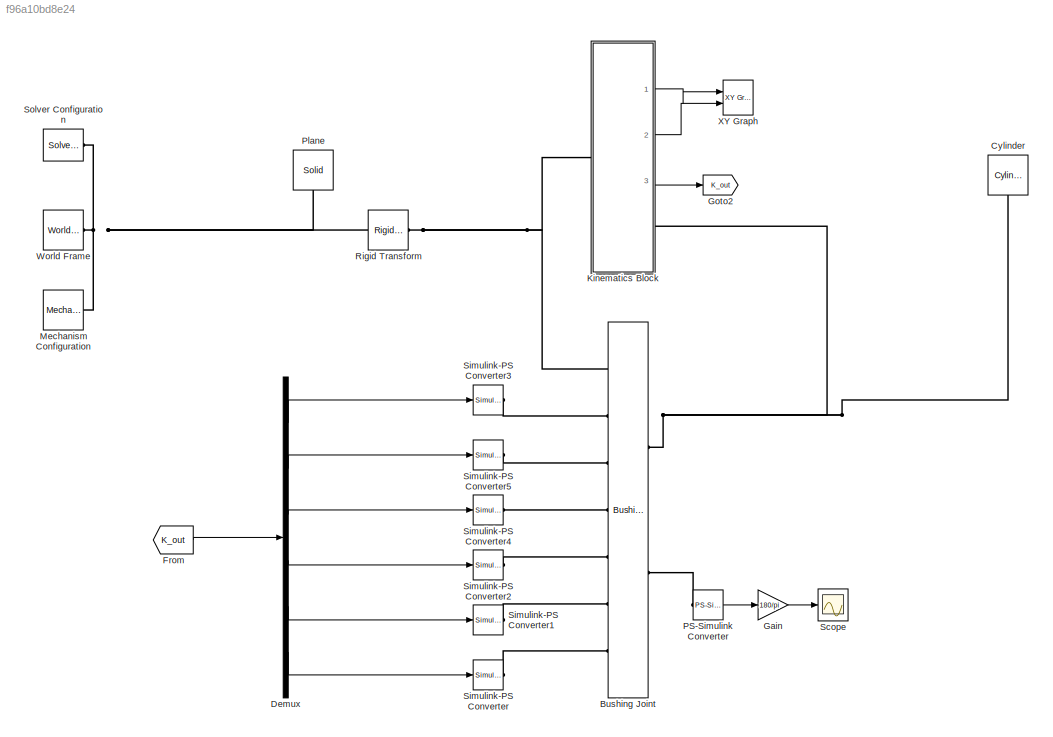
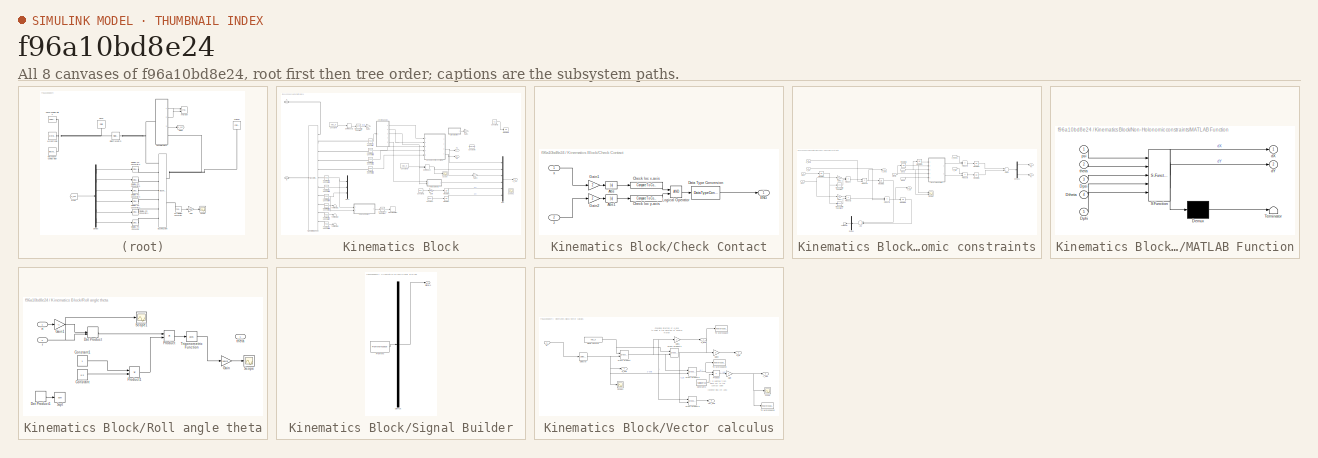
[diagram: thumbnail index - all 8 canvases of the model, root first then tree order]
MODEL slx_f96a10bd8e24
KIND model
CONFIG AbsTol = auto
CONFIG EnableMultiTasking = off
CONFIG FixedStep = auto
CONFIG MaxStep = auto
CONFIG MinStep = auto
CONFIG RelTol = 1e-3
CONFIG SampleTimeConstraint = Unconstrained
CONFIG Solver = VariableStepAuto
CONFIG SolverName = VariableStepAuto
CONFIG StartTime = 0.0
CONFIG StopTime = 10
BLOCK [Reference] Bushing Joint  REF=sm_lib/Joints/Bushing Joint
  Ports = [0, 0, 0, 0, 0, 7, 2]
  SourceBlock = sm_lib/Joints/Bushing Joint
  SourceProductBaseCode = MS
  SourceProductName = Simscape Multibody
  SourceType = Bushing Joint
BLOCK [Reference] Cylinder  REF=Parts_Lib/Cylinder
  Ports = [0, 0, 0, 0, 0, 1]
  SourceBlock = Parts_Lib/Cylinder
  SourceType = Solid Cylinder with Markings
  Tag = CustomStyle
BLOCK [Demux] Demux
  DisplayOption = bar
  Outputs = 6
  Ports = [1, 6]
BLOCK [From] From
  GotoTag = K_out
  TagVisibility = global
BLOCK [Gain] Gain
  Gain = 180/pi
  OutDataTypeStr = Inherit: Inherit via internal rule
  ParamDataTypeStr = Inherit: Inherit via internal rule
  SaturateOnIntegerOverflow = off
BLOCK [Goto] Goto2
  GotoTag = K_out
  TagVisibility = global
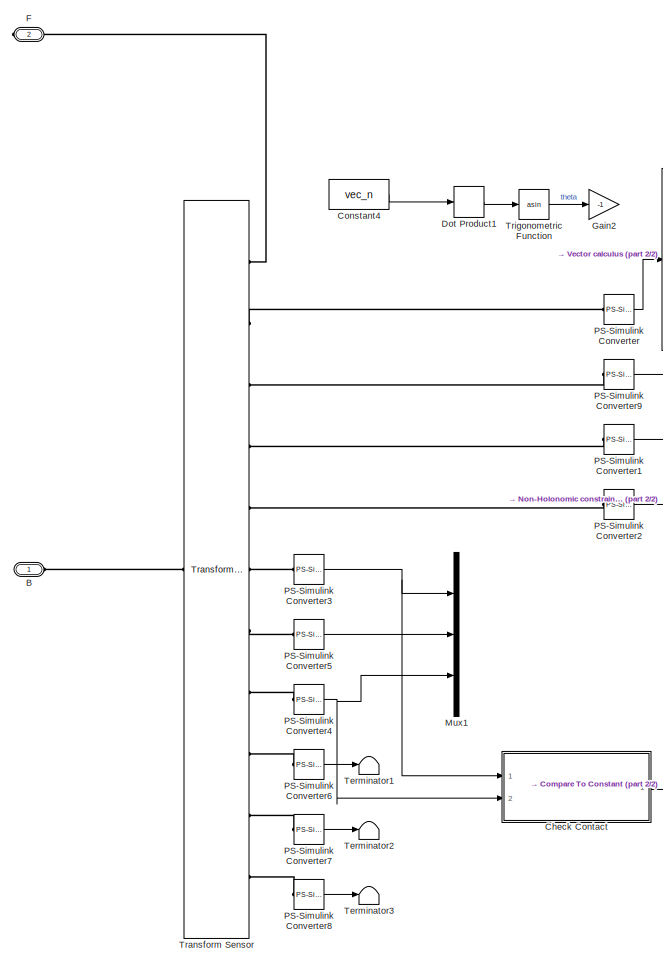
[diagram: Kinematics Block - part 1/2, left side, full height]
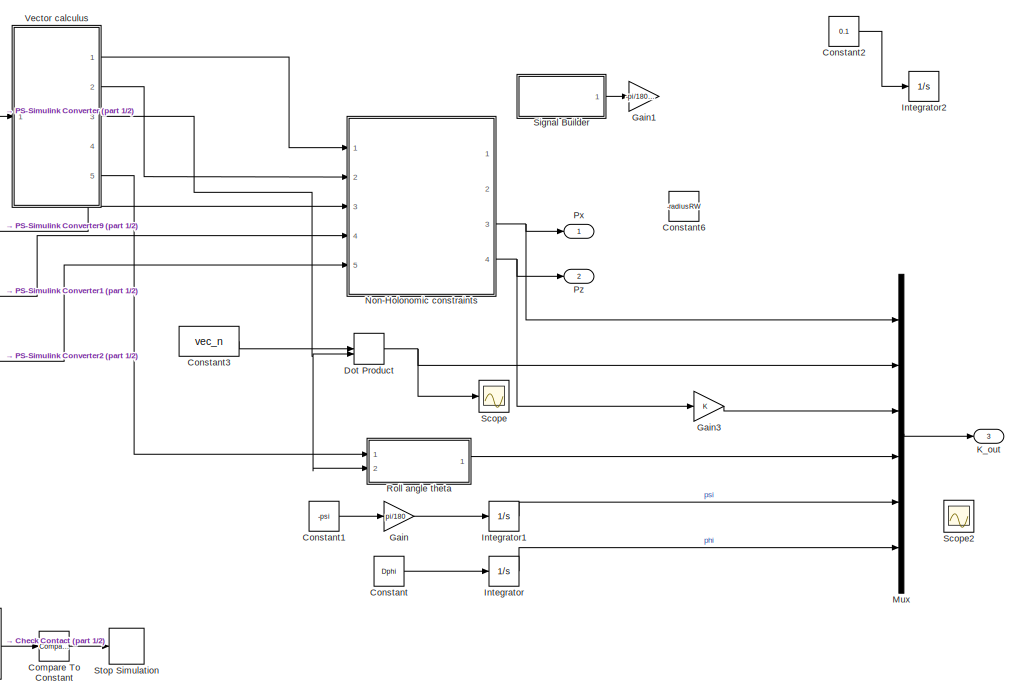
[diagram: Kinematics Block - part 2/2, middle right region]
BLOCK [SubSystem] Kinematics Block
  Ports = [0, 3, 0, 0, 0, 1, 1]
  RequestExecContextInheritance = off
  Variant = off
BLOCK [PMIOPort] Kinematics Block/B
  Port = 1
  Side = Left
BLOCK [SubSystem] Kinematics Block/Check Contact
  Ports = [2, 1]
  RequestExecContextInheritance = off
  Variant = off
BLOCK [Abs] Kinematics Block/Check Contact/Abs
  SaturateOnIntegerOverflow = off
  ZeroCross = off
BLOCK [Abs] Kinematics Block/Check Contact/Abs1
  SaturateOnIntegerOverflow = off
  ZeroCross = off
BLOCK [Reference] Kinematics Block/Check Contact/Check loc x-axis  REF=simulink/Logic and Bit
Operations/Compare
To Constant
  Ports = [1, 1]
  SourceBlock = simulink/Logic and Bit\nOperations/Compare\nTo Constant
  SourceProductBaseCode = SL
  SourceProductName = Simulink
  SourceType = Compare To Constant
BLOCK [Reference] Kinematics Block/Check Contact/Check loc y-axis  REF=simulink/Logic and Bit
Operations/Compare
To Constant
  Ports = [1, 1]
  SourceBlock = simulink/Logic and Bit\nOperations/Compare\nTo Constant
  SourceProductBaseCode = SL
  SourceProductName = Simulink
  SourceType = Compare To Constant
BLOCK [DataTypeConversion] Kinematics Block/Check Contact/Data Type Conversion
  RndMeth = Floor
  SaturateOnIntegerOverflow = off
BLOCK [Outport] Kinematics Block/Check Contact/ENG
  IconDisplay = Port number
BLOCK [Gain] Kinematics Block/Check Contact/Gain1
  Gain = 2
  OutDataTypeStr = Inherit: Inherit via internal rule
  ParamDataTypeStr = Inherit: Inherit via internal rule
  SaturateOnIntegerOverflow = off
BLOCK [Gain] Kinematics Block/Check Contact/Gain2
  Gain = 2
  OutDataTypeStr = Inherit: Inherit via internal rule
  ParamDataTypeStr = Inherit: Inherit via internal rule
  SaturateOnIntegerOverflow = off
BLOCK [Logic] Kinematics Block/Check Contact/Logical Operator
  AllPortsSameDT = off
  OutDataTypeStr = boolean
  Ports = [2, 1]
BLOCK [Inport] Kinematics Block/Check Contact/x
  IconDisplay = Port number
BLOCK [Inport] Kinematics Block/Check Contact/z
  IconDisplay = Port number
  Port = 2
BLOCK [Reference] Kinematics Block/Compare To Constant  REF=simulink/Logic and Bit
Operations/Compare
To Constant
  Ports = [1, 1]
  SourceBlock = simulink/Logic and Bit\nOperations/Compare\nTo Constant
  SourceProductBaseCode = SL
  SourceProductName = Simulink
  SourceType = Compare To Constant
BLOCK [Constant] Kinematics Block/Constant
  Value = Dphi
BLOCK [Constant] Kinematics Block/Constant1
  Value = -psi
BLOCK [Constant] Kinematics Block/Constant2
  Commented = on
  Value = 0.1
BLOCK [Constant] Kinematics Block/Constant3
  Value = vec_n
BLOCK [Constant] Kinematics Block/Constant4
  Commented = on
  Value = vec_n
BLOCK [Constant] Kinematics Block/Constant6
  Value = -radiusRW
BLOCK [DotProduct] Kinematics Block/Dot Product
  OutDataTypeStr = Inherit: Inherit via internal rule
BLOCK [DotProduct] Kinematics Block/Dot Product1
  Commented = on
  OutDataTypeStr = Inherit: Inherit via internal rule
BLOCK [PMIOPort] Kinematics Block/F
  Port = 2
  Side = Right
BLOCK [Gain] Kinematics Block/Gain
  Gain = pi/180
  OutDataTypeStr = Inherit: Inherit via internal rule
  ParamDataTypeStr = Inherit: Inherit via internal rule
  SaturateOnIntegerOverflow = off
BLOCK [Gain] Kinematics Block/Gain1
  Commented = on
  Gain = -pi/180 * 10
  OutDataTypeStr = Inherit: Inherit via internal rule
  ParamDataTypeStr = Inherit: Inherit via internal rule
  SaturateOnIntegerOverflow = off
BLOCK [Gain] Kinematics Block/Gain2
  Commented = on
  Gain = -1
  OutDataTypeStr = Inherit: Inherit via internal rule
  ParamDataTypeStr = Inherit: Inherit via internal rule
  SaturateOnIntegerOverflow = off
BLOCK [Gain] Kinematics Block/Gain3
  OutDataTypeStr = Inherit: Inherit via internal rule
  ParamDataTypeStr = Inherit: Inherit via internal rule
  SaturateOnIntegerOverflow = off
BLOCK [Integrator] Kinematics Block/Integrator
  Ports = [1, 1]
BLOCK [Integrator] Kinematics Block/Integrator1
  Ports = [1, 1]
BLOCK [Integrator] Kinematics Block/Integrator2
  Commented = on
  Ports = [1, 1]
BLOCK [Outport] Kinematics Block/K_out
  IconDisplay = Port number
  Port = 3
BLOCK [Mux] Kinematics Block/Mux
  DisplayOption = bar
  Inputs = 6
  Ports = [6, 1]
BLOCK [Mux] Kinematics Block/Mux1
  DisplayOption = bar
  Inputs = 3
  Ports = [3, 1]
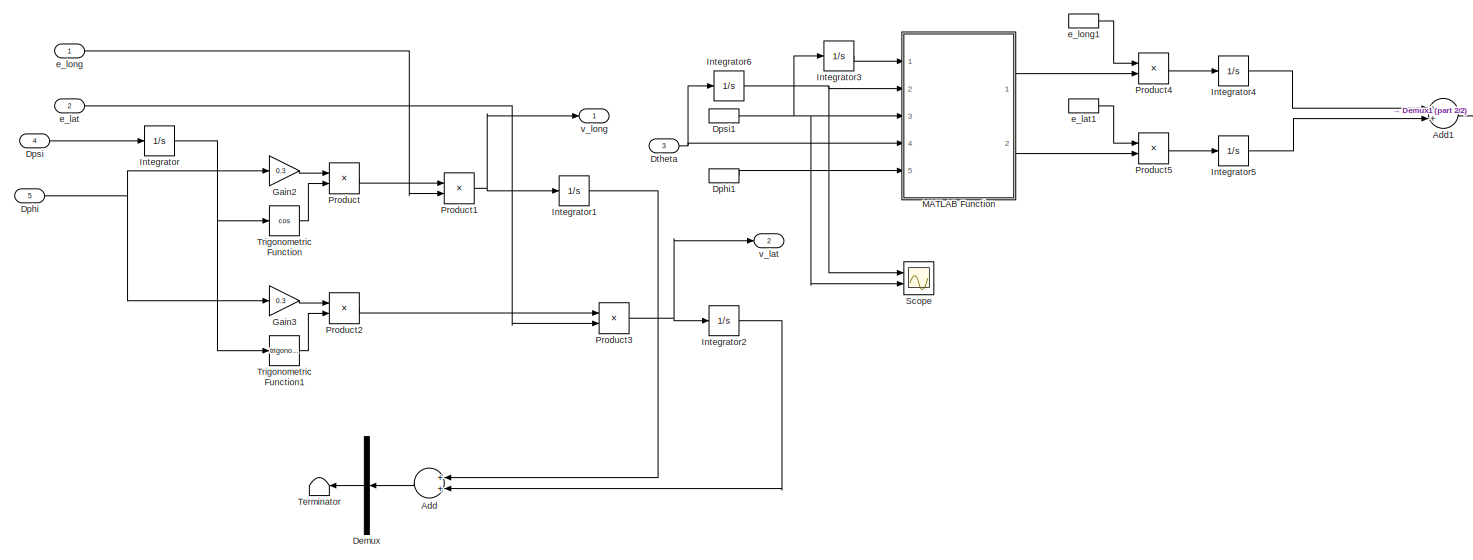
[diagram: Kinematics Block/Non-Holonomic constraints - part 1/2, most of the canvas]
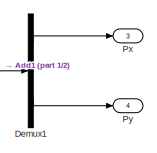
[diagram: Kinematics Block/Non-Holonomic constraints - part 2/2, top right region]
BLOCK [SubSystem] Kinematics Block/Non-Holonomic constraints
  Ports = [5, 4]
  RequestExecContextInheritance = off
  Variant = off
BLOCK [Sum] Kinematics Block/Non-Holonomic constraints/Add
  InputSameDT = off
  Inputs = 2
  OutDataTypeStr = Inherit: Inherit via internal rule
  Ports = [2, 1]
  SaturateOnIntegerOverflow = off
BLOCK [Sum] Kinematics Block/Non-Holonomic constraints/Add1
  InputSameDT = off
  OutDataTypeStr = Inherit: Inherit via internal rule
  Ports = [2, 1]
  SaturateOnIntegerOverflow = off
BLOCK [Demux] Kinematics Block/Non-Holonomic constraints/Demux
  DisplayOption = bar
  Outputs = 3
  Ports = [1, 3]
BLOCK [Demux] Kinematics Block/Non-Holonomic constraints/Demux1
  DisplayOption = bar
  Outputs = 3
  Ports = [1, 3]
BLOCK [Inport] Kinematics Block/Non-Holonomic constraints/Dphi
  IconDisplay = Port number
  Port = 5
BLOCK [InportShadow] Kinematics Block/Non-Holonomic constraints/Dphi1
  IconDisplay = Port number
  Port = 5
BLOCK [Inport] Kinematics Block/Non-Holonomic constraints/Dpsi
  IconDisplay = Port number
  Port = 4
BLOCK [InportShadow] Kinematics Block/Non-Holonomic constraints/Dpsi1
  IconDisplay = Port number
  Port = 4
BLOCK [Inport] Kinematics Block/Non-Holonomic constraints/Dtheta
  IconDisplay = Port number
  Port = 3
BLOCK [Gain] Kinematics Block/Non-Holonomic constraints/Gain2
  Gain = 0.3
  OutDataTypeStr = Inherit: Inherit via internal rule
  ParamDataTypeStr = Inherit: Inherit via internal rule
  SaturateOnIntegerOverflow = off
BLOCK [Gain] Kinematics Block/Non-Holonomic constraints/Gain3
  Gain = 0.3
  OutDataTypeStr = Inherit: Inherit via internal rule
  ParamDataTypeStr = Inherit: Inherit via internal rule
  SaturateOnIntegerOverflow = off
BLOCK [Integrator] Kinematics Block/Non-Holonomic constraints/Integrator
  Ports = [1, 1]
BLOCK [Integrator] Kinematics Block/Non-Holonomic constraints/Integrator1
  Ports = [1, 1]
BLOCK [Integrator] Kinematics Block/Non-Holonomic constraints/Integrator2
  Ports = [1, 1]
BLOCK [Integrator] Kinematics Block/Non-Holonomic constraints/Integrator3
  Ports = [1, 1]
BLOCK [Integrator] Kinematics Block/Non-Holonomic constraints/Integrator4
  Ports = [1, 1]
BLOCK [Integrator] Kinematics Block/Non-Holonomic constraints/Integrator5
  Ports = [1, 1]
BLOCK [Integrator] Kinematics Block/Non-Holonomic constraints/Integrator6
  Ports = [1, 1]
BLOCK [SubSystem] Kinematics Block/Non-Holonomic constraints/MATLAB Function
  ErrorFcn = Stateflow.Translate.translate
  PermitHierarchicalResolution = ExplicitOnly
  Ports = [5, 2]
  RequestExecContextInheritance = off
  SFBlockType = MATLAB Function
  TreatAsAtomicUnit = on
  Variant = off
BLOCK [Demux] Kinematics Block/Non-Holonomic constraints/MATLAB Function/ Demux 
  Outputs = 1
  Ports = [1, 1]
BLOCK [S-Function] Kinematics Block/Non-Holonomic constraints/MATLAB Function/ SFunction 
  EnableBusSupport = on
  FunctionName = sf_sfun
  Parameters = radiusRW
  PortCounts = [5 3]
  Ports = [5, 3]
  SFcnIsStateOwnerBlock = off
  SFunctionDeploymentMode = off
  Tag = Stateflow S-Function RollRW 2
BLOCK [Terminator] Kinematics Block/Non-Holonomic constraints/MATLAB Function/ Terminator 
BLOCK [Inport] Kinematics Block/Non-Holonomic constraints/MATLAB Function/Dphi
  IconDisplay = Port number
  Port = 5
BLOCK [Inport] Kinematics Block/Non-Holonomic constraints/MATLAB Function/Dpsi
  IconDisplay = Port number
  Port = 3
BLOCK [Inport] Kinematics Block/Non-Holonomic constraints/MATLAB Function/Dtheta
  IconDisplay = Port number
  Port = 4
BLOCK [Outport] Kinematics Block/Non-Holonomic constraints/MATLAB Function/dX
  IconDisplay = Port number
BLOCK [Outport] Kinematics Block/Non-Holonomic constraints/MATLAB Function/dY
  IconDisplay = Port number
  Port = 2
BLOCK [Inport] Kinematics Block/Non-Holonomic constraints/MATLAB Function/psi
  IconDisplay = Port number
BLOCK [Inport] Kinematics Block/Non-Holonomic constraints/MATLAB Function/theta
  IconDisplay = Port number
  Port = 2
BLOCK [Product] Kinematics Block/Non-Holonomic constraints/Product
  InputSameDT = off
  OutDataTypeStr = Inherit: Inherit via internal rule
  Ports = [2, 1]
  RndMeth = Floor
  SaturateOnIntegerOverflow = off
BLOCK [Product] Kinematics Block/Non-Holonomic constraints/Product1
  InputSameDT = off
  OutDataTypeStr = Inherit: Inherit via internal rule
  Ports = [2, 1]
  RndMeth = Floor
  SaturateOnIntegerOverflow = off
BLOCK [Product] Kinematics Block/Non-Holonomic constraints/Product2
  InputSameDT = off
  OutDataTypeStr = Inherit: Inherit via internal rule
  Ports = [2, 1]
  RndMeth = Floor
  SaturateOnIntegerOverflow = off
BLOCK [Product] Kinematics Block/Non-Holonomic constraints/Product3
  InputSameDT = off
  OutDataTypeStr = Inherit: Inherit via internal rule
  Ports = [2, 1]
  RndMeth = Floor
  SaturateOnIntegerOverflow = off
BLOCK [Product] Kinematics Block/Non-Holonomic constraints/Product4
  InputSameDT = off
  OutDataTypeStr = Inherit: Inherit via internal rule
  Ports = [2, 1]
  RndMeth = Floor
  SaturateOnIntegerOverflow = off
BLOCK [Product] Kinematics Block/Non-Holonomic constraints/Product5
  InputSameDT = off
  OutDataTypeStr = Inherit: Inherit via internal rule
  Ports = [2, 1]
  RndMeth = Floor
  SaturateOnIntegerOverflow = off
BLOCK [Outport] Kinematics Block/Non-Holonomic constraints/Px
  IconDisplay = Port number
  Port = 3
BLOCK [Outport] Kinematics Block/Non-Holonomic constraints/Py
  IconDisplay = Port number
  Port = 4
BLOCK [Scope] Kinematics Block/Non-Holonomic constraints/Scope
  NumInputPorts = 2
  Ports = [2]
  ScopeSpecificationString = Simulink.scopes.TimeScopeBlockCfg('CurrentConfiguration', extmgr.ConfigurationSet(extmgr.Configuration('Core','General UI',true),extmgr.Configuration('Core','Source UI',true),extmgr.Configuration('Sources','WiredSimulink',true,'DataLoggingVariableName','ScopeData4'),extmgr.Configuration('Visuals','Time Domain',true,'SerializedDisplays',{struct('MinYLimReal','-0.43633','MaxYLimReal','0.43633','YLab...<+1408ch>
BLOCK [Terminator] Kinematics Block/Non-Holonomic constraints/Terminator
BLOCK [Trigonometry] Kinematics Block/Non-Holonomic constraints/Trigonometric Function
  Operator = cos
  Ports = [1, 1]
BLOCK [Trigonometry] Kinematics Block/Non-Holonomic constraints/Trigonometric Function1
  Ports = [1, 1]
BLOCK [Inport] Kinematics Block/Non-Holonomic constraints/e_lat
  IconDisplay = Port number
  Port = 2
BLOCK [InportShadow] Kinematics Block/Non-Holonomic constraints/e_lat1
  IconDisplay = Port number
  Port = 2
BLOCK [Inport] Kinematics Block/Non-Holonomic constraints/e_long
  IconDisplay = Port number
BLOCK [InportShadow] Kinematics Block/Non-Holonomic constraints/e_long1
  IconDisplay = Port number
BLOCK [Outport] Kinematics Block/Non-Holonomic constraints/v_lat
  IconDisplay = Port number
  Port = 2
BLOCK [Outport] Kinematics Block/Non-Holonomic constraints/v_long
  IconDisplay = Port number
BLOCK [Reference] Kinematics Block/PS-Simulink Converter  REF=nesl_utility/PS-Simulink
Converter
  Ports = [0, 1, 0, 0, 0, 1]
  SourceBlock = nesl_utility/PS-Simulink\nConverter
  SourceProductBaseCode = SS
  SourceProductName = Simscape
  SourceType = PS-Simulink\nConverter
BLOCK [Reference] Kinematics Block/PS-Simulink Converter1  REF=nesl_utility/PS-Simulink
Converter
  Ports = [0, 1, 0, 0, 0, 1]
  SourceBlock = nesl_utility/PS-Simulink\nConverter
  SourceProductBaseCode = SS
  SourceProductName = Simscape
  SourceType = PS-Simulink\nConverter
BLOCK [Reference] Kinematics Block/PS-Simulink Converter2  REF=nesl_utility/PS-Simulink
Converter
  Ports = [0, 1, 0, 0, 0, 1]
  SourceBlock = nesl_utility/PS-Simulink\nConverter
  SourceProductBaseCode = SS
  SourceProductName = Simscape
  SourceType = PS-Simulink\nConverter
BLOCK [Reference] Kinematics Block/PS-Simulink Converter3  REF=nesl_utility/PS-Simulink
Converter
  Ports = [0, 1, 0, 0, 0, 1]
  SourceBlock = nesl_utility/PS-Simulink\nConverter
  SourceProductBaseCode = SS
  SourceProductName = Simscape
  SourceType = PS-Simulink\nConverter
BLOCK [Reference] Kinematics Block/PS-Simulink Converter4  REF=nesl_utility/PS-Simulink
Converter
  Ports = [0, 1, 0, 0, 0, 1]
  SourceBlock = nesl_utility/PS-Simulink\nConverter
  SourceProductBaseCode = SS
  SourceProductName = Simscape
  SourceType = PS-Simulink\nConverter
BLOCK [Reference] Kinematics Block/PS-Simulink Converter5  REF=nesl_utility/PS-Simulink
Converter
  Ports = [0, 1, 0, 0, 0, 1]
  SourceBlock = nesl_utility/PS-Simulink\nConverter
  SourceProductBaseCode = SS
  SourceProductName = Simscape
  SourceType = PS-Simulink\nConverter
BLOCK [Reference] Kinematics Block/PS-Simulink Converter6  REF=nesl_utility/PS-Simulink
Converter
  Ports = [0, 1, 0, 0, 0, 1]
  SourceBlock = nesl_utility/PS-Simulink\nConverter
  SourceProductBaseCode = SS
  SourceProductName = Simscape
  SourceType = PS-Simulink\nConverter
BLOCK [Reference] Kinematics Block/PS-Simulink Converter7  REF=nesl_utility/PS-Simulink
Converter
  Ports = [0, 1, 0, 0, 0, 1]
  SourceBlock = nesl_utility/PS-Simulink\nConverter
  SourceProductBaseCode = SS
  SourceProductName = Simscape
  SourceType = PS-Simulink\nConverter
BLOCK [Reference] Kinematics Block/PS-Simulink Converter8  REF=nesl_utility/PS-Simulink
Converter
  Ports = [0, 1, 0, 0, 0, 1]
  SourceBlock = nesl_utility/PS-Simulink\nConverter
  SourceProductBaseCode = SS
  SourceProductName = Simscape
  SourceType = PS-Simulink\nConverter
BLOCK [Reference] Kinematics Block/PS-Simulink Converter9  REF=nesl_utility/PS-Simulink
Converter
  Ports = [0, 1, 0, 0, 0, 1]
  SourceBlock = nesl_utility/PS-Simulink\nConverter
  SourceProductBaseCode = SS
  SourceProductName = Simscape
  SourceType = PS-Simulink\nConverter
BLOCK [Outport] Kinematics Block/Px
  IconDisplay = Port number
BLOCK [Outport] Kinematics Block/Pz
  IconDisplay = Port number
  Port = 2
BLOCK [SubSystem] Kinematics Block/Roll angle theta
  Ports = [2, 1]
  RequestExecContextInheritance = off
  Variant = off
BLOCK [Constant] Kinematics Block/Roll angle theta/Constant
  Value = 0.3
BLOCK [Constant] Kinematics Block/Roll angle theta/Constant1
BLOCK [DotProduct] Kinematics Block/Roll angle theta/Dot Product
  OutDataTypeStr = Inherit: Inherit via internal rule
BLOCK [DotProduct] Kinematics Block/Roll angle theta/Dot Product1
  OutDataTypeStr = Inherit: Inherit via internal rule
BLOCK [Gain] Kinematics Block/Roll angle theta/Gain
  Gain = 180/pi
  OutDataTypeStr = Inherit: Inherit via internal rule
  ParamDataTypeStr = Inherit: Inherit via internal rule
  SaturateOnIntegerOverflow = off
BLOCK [Gain] Kinematics Block/Roll angle theta/Gain1
  Gain = -1
  OutDataTypeStr = Inherit: Inherit via internal rule
  ParamDataTypeStr = Inherit: Inherit via internal rule
  SaturateOnIntegerOverflow = off
BLOCK [Product] Kinematics Block/Roll angle theta/Product
  InputSameDT = off
  Inputs = */
  OutDataTypeStr = Inherit: Inherit via internal rule
  Ports = [2, 1]
  RndMeth = Floor
  SaturateOnIntegerOverflow = off
BLOCK [Product] Kinematics Block/Roll angle theta/Product1
  InputSameDT = off
  OutDataTypeStr = Inherit: Inherit via internal rule
  Ports = [2, 1]
  RndMeth = Floor
  SaturateOnIntegerOverflow = off
BLOCK [Scope] Kinematics Block/Roll angle theta/Scope
  NumInputPorts = 1
  Ports = [1]
  ScopeSpecificationString = Simulink.scopes.TimeScopeBlockCfg('CurrentConfiguration', extmgr.ConfigurationSet(extmgr.Configuration('Core','General UI',true),extmgr.Configuration('Core','Source UI',true),extmgr.Configuration('Sources','WiredSimulink',true,'DataLoggingVariableName','ScopeData2'),extmgr.Configuration('Visuals','Time Domain',true,'SerializedDisplays',{struct('MinYLimReal','-0.0000005','MaxYLimReal','0.0000046','...<+1408ch>
BLOCK [Scope] Kinematics Block/Roll angle theta/Scope1
  NumInputPorts = 1
  Ports = [1]
  ScopeSpecificationString = Simulink.scopes.TimeScopeBlockCfg('CurrentConfiguration', extmgr.ConfigurationSet(extmgr.Configuration('Core','General UI',true),extmgr.Configuration('Core','Source UI',true),extmgr.Configuration('Sources','WiredSimulink',true,'DataLoggingVariableName','ScopeData3'),extmgr.Configuration('Visuals','Time Domain',true,'SerializedDisplays',{struct('MinYLimReal','-0.0375','MaxYLimReal','0.3375','YLabel...<+1410ch>
BLOCK [Sqrt] Kinematics Block/Roll angle theta/Sqrt
BLOCK [Trigonometry] Kinematics Block/Roll angle theta/Trigonometric Function
  Operator = acos
  Ports = [1, 1]
BLOCK [Inport] Kinematics Block/Roll angle theta/n
  IconDisplay = Port number
BLOCK [Inport] Kinematics Block/Roll angle theta/r
  IconDisplay = Port number
  Port = 2
BLOCK [Outport] Kinematics Block/Roll angle theta/theta
  IconDisplay = Port number
BLOCK [Scope] Kinematics Block/Scope
  NumInputPorts = 1
  Ports = [1]
  ScopeSpecificationString = Simulink.scopes.TimeScopeBlockCfg('CurrentConfiguration', extmgr.ConfigurationSet(extmgr.Configuration('Core','General UI',true),extmgr.Configuration('Core','Source UI',true),extmgr.Configuration('Sources','WiredSimulink',true,'DataLoggingVariableName','ScopeData5'),extmgr.Configuration('Visuals','Time Domain',true,'SerializedDisplays',{struct('MinYLimReal','-0.3000000000000011','MaxYLimReal','-0....<+1460ch>
BLOCK [Scope] Kinematics Block/Scope2
  NumInputPorts = 1
  Ports = [1]
  ScopeSpecificationString = Simulink.scopes.TimeScopeBlockCfg('CurrentConfiguration', extmgr.ConfigurationSet(extmgr.Configuration('Core','General UI',true),extmgr.Configuration('Core','Source UI',true),extmgr.Configuration('Sources','WiredSimulink',true,'DataLoggingVariableName','ScopeData3'),extmgr.Configuration('Visuals','Time Domain',true,'SerializedDisplays',{struct('MinYLimReal','-1.00000','MaxYLimReal','1.00000','YLab...<+1398ch>
BLOCK [SubSystem] Kinematics Block/Signal Builder
  ClipboardFcn = sigbuilder_block('clipboard');
  CloseFcn = sigbuilder_block('close');
  Commented = on
  ContinueFcn = sigbuilder_block('continue');
  CopyFcn = sigbuilder_block('copy');
  DeleteFcn = sigbuilder_block('delete');
  LoadFcn = sigbuilder_block('load');
  MaskHideContents = on
  ModelCloseFcn = sigbuilder_block('modelClose');
  NameChangeFcn = sigbuilder_block('namechange');
  OpenFcn = sigbuilder_block('open',[437.6 199.2 550.4 400 ]);
  PauseFcn = sigbuilder_block('pause');
  Ports = [0, 1]
  PreSaveFcn = sigbuilder_block('preSave');
  RequestExecContextInheritance = off
  StartFcn = sigbuilder_block('start');
  StopFcn = sigbuilder_block('stop');
  Tag = STV Subsys
  Variant = off
BLOCK [Demux] Kinematics Block/Signal Builder/Demux
  Outputs = 1
  Ports = [1, 1]
  Tag = STV Demux
BLOCK [FromWorkspace] Kinematics Block/Signal Builder/FromWs
  SampleTime = 0
  Tag = STV FromWs
  VariableName = tuvar
  ZeroCross = on
BLOCK [Outport] Kinematics Block/Signal Builder/Signal 1
  IconDisplay = Port number
  Tag = STV Outport
BLOCK [Stop] Kinematics Block/Stop Simulation
BLOCK [Terminator] Kinematics Block/Terminator1
BLOCK [Terminator] Kinematics Block/Terminator2
BLOCK [Terminator] Kinematics Block/Terminator3
BLOCK [Reference] Kinematics Block/Transform Sensor  REF=sm_lib/Frames and
Transforms/Transform
Sensor
  Ports = [0, 0, 0, 0, 0, 1, 11]
  SourceBlock = sm_lib/Frames and\nTransforms/Transform\nSensor
  SourceProductBaseCode = MS
  SourceProductName = Simscape Multibody
  SourceType = Transform\nSensor
BLOCK [Trigonometry] Kinematics Block/Trigonometric Function
  Commented = on
  Operator = asin
  Ports = [1, 1]
BLOCK [SubSystem] Kinematics Block/Vector calculus
  Ports = [1, 5]
  RequestExecContextInheritance = off
  Variant = off
BLOCK [Constant] Kinematics Block/Vector calculus/Constant2
  Value = radiusRW
BLOCK [Reference] Kinematics Block/Vector calculus/Cross Product  REF=Contact_Forces_Lib/Math/Cross
Product
  Ports = [2, 1]
  SourceBlock = Contact_Forces_Lib/Math/Cross\nProduct
  SourceType = SubSystem
BLOCK [Reference] Kinematics Block/Vector calculus/Cross Product1  REF=Contact_Forces_Lib/Math/Cross
Product
  Ports = [2, 1]
  SourceBlock = Contact_Forces_Lib/Math/Cross\nProduct
  SourceType = SubSystem
BLOCK [Reference] Kinematics Block/Vector calculus/Cross Product2  REF=Contact_Forces_Lib/Math/Cross
Product
  Ports = [2, 1]
  SourceBlock = Contact_Forces_Lib/Math/Cross\nProduct
  SourceType = SubSystem
BLOCK [Reference] Kinematics Block/Vector calculus/Cross Product3  REF=Contact_Forces_Lib/Math/Cross
Product
  Ports = [2, 1]
  SourceBlock = Contact_Forces_Lib/Math/Cross\nProduct
  SourceType = SubSystem
BLOCK [Gain] Kinematics Block/Vector calculus/Gain
  OutDataTypeStr = Inherit: Inherit via internal rule
  ParamDataTypeStr = Inherit: Inherit via internal rule
  SaturateOnIntegerOverflow = off
BLOCK [Gain] Kinematics Block/Vector calculus/Gain1
  Gain = -1
  OutDataTypeStr = Inherit: Inherit via internal rule
  ParamDataTypeStr = Inherit: Inherit via internal rule
  SaturateOnIntegerOverflow = off
BLOCK [Gain] Kinematics Block/Vector calculus/Gain2
  OutDataTypeStr = Inherit: Inherit via internal rule
  ParamDataTypeStr = Inherit: Inherit via internal rule
  SaturateOnIntegerOverflow = off
BLOCK [Constant] Kinematics Block/Vector calculus/Plane normal
  Value = vec_n
BLOCK [Product] Kinematics Block/Vector calculus/Product
  InputSameDT = off
  OutDataTypeStr = Inherit: Inherit via internal rule
  Ports = [2, 1]
  RndMeth = Floor
  SaturateOnIntegerOverflow = off
BLOCK [Inport] Kinematics Block/Vector calculus/R
  IconDisplay = Port number
BLOCK [Scope] Kinematics Block/Vector calculus/Scope
  NumInputPorts = 1
  Ports = [1]
  ScopeSpecificationString = Simulink.scopes.TimeScopeBlockCfg('CurrentConfiguration', extmgr.ConfigurationSet(extmgr.Configuration('Core','General UI',true),extmgr.Configuration('Core','Source UI',true),extmgr.Configuration('Sources','WiredSimulink',true,'DataLoggingVariableName','ScopeData1'),extmgr.Configuration('Visuals','Time Domain',true,'SerializedDisplays',{struct('MinYLimReal','-0.0375','MaxYLimReal','0.3375','YLabel...<+1407ch>
BLOCK [Scope] Kinematics Block/Vector calculus/Scope1
  NumInputPorts = 1
  Ports = [1]
  ScopeSpecificationString = Simulink.scopes.TimeScopeBlockCfg('CurrentConfiguration', extmgr.ConfigurationSet(extmgr.Configuration('Core','General UI',true),extmgr.Configuration('Core','Source UI',true),extmgr.Configuration('Sources','WiredSimulink',true,'DataLoggingVariableName','ScopeData1'),extmgr.Configuration('Visuals','Time Domain',true,'SerializedDisplays',{struct('MinYLimReal','-1.25','MaxYLimReal','1.25','YLabelReal...<+1369ch>
BLOCK [Selector] Kinematics Block/Vector calculus/Selector
  IndexOptions = Select all,Index vector (dialog)
  Indices = [1 3],3
  InputPortWidth = 3
  NumberOfDimensions = 2
  OutputSizes = 1,1
  Ports = [1, 1]
BLOCK [ToWorkspace] Kinematics Block/Vector calculus/To Workspace
  FixptAsFi = on
  MaxDataPoints = inf
  Ports = [1]
  SampleTime = -1
  Save2DSignal = 3-D array (concatenate along third dimension)
  SaveFormat = Timeseries
  VariableName = e_lat
BLOCK [ToWorkspace] Kinematics Block/Vector calculus/To Workspace2
  FixptAsFi = on
  MaxDataPoints = inf
  Ports = [1]
  SampleTime = -1
  Save2DSignal = 3-D array (concatenate along third dimension)
  SaveFormat = Timeseries
  VariableName = e_r
BLOCK [ToWorkspace] Kinematics Block/Vector calculus/To Workspace3
  FixptAsFi = on
  MaxDataPoints = inf
  Ports = [1]
  SampleTime = -1
  Save2DSignal = 3-D array (concatenate along third dimension)
  SaveFormat = Timeseries
  VariableName = vec_r
BLOCK [Outport] Kinematics Block/Vector calculus/e_axis
  IconDisplay = Port number
  Port = 4
BLOCK [Outport] Kinematics Block/Vector calculus/e_lat
  IconDisplay = Port number
  Port = 2
BLOCK [Outport] Kinematics Block/Vector calculus/e_long
  IconDisplay = Port number
BLOCK [Outport] Kinematics Block/Vector calculus/r_vec
  IconDisplay = Port number
  Port = 3
BLOCK [Outport] Kinematics Block/Vector calculus/ver_axis
  IconDisplay = Port number
  Port = 5
BLOCK [Reference] Mechanism Configuration  REF=sm_lib/Utilities/Mechanism
Configuration
  Ports = [0, 0, 0, 0, 0, 0, 1]
  SourceBlock = sm_lib/Utilities/Mechanism\nConfiguration
  SourceProductBaseCode = MS
  SourceProductName = Simscape Multibody
  SourceType = Mechanism\nConfiguration
BLOCK [Reference] PS-Simulink Converter  REF=nesl_utility/PS-Simulink
Converter
  Ports = [0, 1, 0, 0, 0, 1]
  SourceBlock = nesl_utility/PS-Simulink\nConverter
  SourceProductBaseCode = SS
  SourceProductName = Simscape
  SourceType = PS-Simulink\nConverter
BLOCK [Reference] Plane  REF=sm_lib/Body Elements/Solid
  Ports = [0, 0, 0, 0, 0, 0, 1]
  SourceBlock = sm_lib/Body Elements/Solid
  SourceProductBaseCode = MS
  SourceProductName = Simscape Multibody
  SourceType = Solid
BLOCK [Reference] Rigid Transform  REF=sm_lib/Frames and
Transforms/Rigid
Transform
  Ports = [0, 0, 0, 0, 0, 1, 1]
  SourceBlock = sm_lib/Frames and\nTransforms/Rigid\nTransform
  SourceProductBaseCode = MS
  SourceProductName = Simscape Multibody
  SourceType = Rigid\nTransform
BLOCK [Scope] Scope
  NumInputPorts = 1
  Ports = [1]
  ScopeSpecificationString = Simulink.scopes.TimeScopeBlockCfg('CurrentConfiguration', extmgr.ConfigurationSet(extmgr.Configuration('Core','General UI',true),extmgr.Configuration('Core','Source UI',true),extmgr.Configuration('Sources','WiredSimulink',true,'DataLoggingVariableName','ScopeData1'),extmgr.Configuration('Visuals','Time Domain',true,'SerializedDisplays',{struct('MinYLimReal','-0.0000009','MaxYLimReal','0.0000023','...<+1408ch>
BLOCK [Reference] Simulink-PS Converter  REF=nesl_utility/Simulink-PS
Converter
  Ports = [1, 0, 0, 0, 0, 0, 1]
  SourceBlock = nesl_utility/Simulink-PS\nConverter
  SourceProductBaseCode = SS
  SourceProductName = Simscape
  SourceType = Simulink-PS\nConverter
BLOCK [Reference] Simulink-PS Converter1  REF=nesl_utility/Simulink-PS
Converter
  Ports = [1, 0, 0, 0, 0, 0, 1]
  SourceBlock = nesl_utility/Simulink-PS\nConverter
  SourceProductBaseCode = SS
  SourceProductName = Simscape
  SourceType = Simulink-PS\nConverter
BLOCK [Reference] Simulink-PS Converter2  REF=nesl_utility/Simulink-PS
Converter
  Ports = [1, 0, 0, 0, 0, 0, 1]
  SourceBlock = nesl_utility/Simulink-PS\nConverter
  SourceProductBaseCode = SS
  SourceProductName = Simscape
  SourceType = Simulink-PS\nConverter
BLOCK [Reference] Simulink-PS Converter3  REF=nesl_utility/Simulink-PS
Converter
  Ports = [1, 0, 0, 0, 0, 0, 1]
  SourceBlock = nesl_utility/Simulink-PS\nConverter
  SourceProductBaseCode = SS
  SourceProductName = Simscape
  SourceType = Simulink-PS\nConverter
BLOCK [Reference] Simulink-PS Converter4  REF=nesl_utility/Simulink-PS
Converter
  Ports = [1, 0, 0, 0, 0, 0, 1]
  SourceBlock = nesl_utility/Simulink-PS\nConverter
  SourceProductBaseCode = SS
  SourceProductName = Simscape
  SourceType = Simulink-PS\nConverter
BLOCK [Reference] Simulink-PS Converter5  REF=nesl_utility/Simulink-PS
Converter
  Ports = [1, 0, 0, 0, 0, 0, 1]
  SourceBlock = nesl_utility/Simulink-PS\nConverter
  SourceProductBaseCode = SS
  SourceProductName = Simscape
  SourceType = Simulink-PS\nConverter
BLOCK [Reference] Solver Configuration  REF=nesl_utility/Solver
Configuration
  Ports = [0, 0, 0, 0, 0, 0, 1]
  SourceBlock = nesl_utility/Solver\nConfiguration
  SourceProductBaseCode = SS
  SourceProductName = Simscape
  SourceType = Solver\nConfiguration
BLOCK [Reference] World Frame  REF=sm_lib/Frames and
Transforms/World Frame
  Ports = [0, 0, 0, 0, 0, 0, 1]
  SourceBlock = sm_lib/Frames and\nTransforms/World Frame
  SourceProductBaseCode = MS
  SourceProductName = Simscape Multibody
  SourceType = World Frame
BLOCK [Reference] XY Graph  REF=simulink/Sinks/XY Graph
  Ports = [2]
  SourceBlock = simulink/Sinks/XY Graph
  SourceProductBaseCode = SL
  SourceProductName = Simulink
  SourceType = XY scope.
ANNOTATION Kinematics Block/Vector calculus: Changing direction of e_long to point in the direction of positve motion
ANNOTATION Kinematics Block/Vector calculus: e_r is pointing from disk's cm to the contact point (positive disk cm axis)
LINE Demux:1 -> Simulink-PS Converter3:1
LINE Demux:2 -> Simulink-PS Converter5:1
LINE Demux:3 -> Simulink-PS Converter4:1
LINE Demux:4 -> Simulink-PS Converter2:1
LINE Demux:5 -> Simulink-PS Converter1:1
LINE Demux:6 -> Simulink-PS Converter:1
LINE From:1 -> Demux:1
LINE Gain:1 -> Scope:1
LINE Kinematics Block/Check Contact/Abs1:1 -> Kinematics Block/Check Contact/Check loc y-axis:1
LINE Kinematics Block/Check Contact/Abs:1 -> Kinematics Block/Check Contact/Check loc x-axis:1
LINE Kinematics Block/Check Contact/Check loc x-axis:1 -> Kinematics Block/Check Contact/Logical Operator:1
LINE Kinematics Block/Check Contact/Check loc y-axis:1 -> Kinematics Block/Check Contact/Logical Operator:2
LINE Kinematics Block/Check Contact/Data Type Conversion:1 -> Kinematics Block/Check Contact/ENG:1
LINE Kinematics Block/Check Contact/Gain1:1 -> Kinematics Block/Check Contact/Abs:1
LINE Kinematics Block/Check Contact/Gain2:1 -> Kinematics Block/Check Contact/Abs1:1
LINE Kinematics Block/Check Contact/Logical Operator:1 -> Kinematics Block/Check Contact/Data Type Conversion:1
LINE Kinematics Block/Check Contact/x:1 -> Kinematics Block/Check Contact/Gain1:1
LINE Kinematics Block/Check Contact/z:1 -> Kinematics Block/Check Contact/Gain2:1
LINE Kinematics Block/Check Contact:1 -> Kinematics Block/Compare To Constant:1
LINE Kinematics Block/Compare To Constant:1 -> Kinematics Block/Stop Simulation:1
LINE Kinematics Block/Constant1:1 -> Kinematics Block/Gain:1
LINE Kinematics Block/Constant2:1 -> Kinematics Block/Integrator2:1
LINE Kinematics Block/Constant3:1 -> Kinematics Block/Dot Product:1
LINE Kinematics Block/Constant4:1 -> Kinematics Block/Dot Product1:1
LINE Kinematics Block/Constant:1 -> Kinematics Block/Integrator:1
LINE Kinematics Block/Dot Product1:1 -> Kinematics Block/Trigonometric Function:1
NET Kinematics Block/Dot Product:1 -> Kinematics Block/Mux:2, Kinematics Block/Scope:1
LINE Kinematics Block/Gain3:1 -> Kinematics Block/Mux:3
LINE Kinematics Block/Gain:1 -> Kinematics Block/Integrator1:1
LINE Kinematics Block/Integrator1:1 -> Kinematics Block/Mux:5
LINE Kinematics Block/Integrator:1 -> Kinematics Block/Mux:6
LINE Kinematics Block/Mux:1 -> Kinematics Block/K_out:1
LINE Kinematics Block/Non-Holonomic constraints/Add1:1 -> Kinematics Block/Non-Holonomic constraints/Demux1:1
LINE Kinematics Block/Non-Holonomic constraints/Add:1 -> Kinematics Block/Non-Holonomic constraints/Demux:1
LINE Kinematics Block/Non-Holonomic constraints/Demux1:1 -> Kinematics Block/Non-Holonomic constraints/Px:1
LINE Kinematics Block/Non-Holonomic constraints/Demux1:3 -> Kinematics Block/Non-Holonomic constraints/Py:1
LINE Kinematics Block/Non-Holonomic constraints/Demux:2 -> Kinematics Block/Non-Holonomic constraints/Terminator:1
LINE Kinematics Block/Non-Holonomic constraints/Dphi1:1 -> Kinematics Block/Non-Holonomic constraints/MATLAB Function:5
NET Kinematics Block/Non-Holonomic constraints/Dphi:1 -> Kinematics Block/Non-Holonomic constraints/Gain2:1, Kinematics Block/Non-Holonomic constraints/Gain3:1
NET Kinematics Block/Non-Holonomic constraints/Dpsi1:1 -> Kinematics Block/Non-Holonomic constraints/Integrator3:1, Kinematics Block/Non-Holonomic constraints/MATLAB Function:3, Kinematics Block/Non-Holonomic constraints/Scope:2
LINE Kinematics Block/Non-Holonomic constraints/Dpsi:1 -> Kinematics Block/Non-Holonomic constraints/Integrator:1
NET Kinematics Block/Non-Holonomic constraints/Dtheta:1 -> Kinematics Block/Non-Holonomic constraints/Integrator6:1, Kinematics Block/Non-Holonomic constraints/MATLAB Function:4
LINE Kinematics Block/Non-Holonomic constraints/Gain2:1 -> Kinematics Block/Non-Holonomic constraints/Product:1
LINE Kinematics Block/Non-Holonomic constraints/Gain3:1 -> Kinematics Block/Non-Holonomic constraints/Product2:1
LINE Kinematics Block/Non-Holonomic constraints/Integrator1:1 -> Kinematics Block/Non-Holonomic constraints/Add:1
LINE Kinematics Block/Non-Holonomic constraints/Integrator2:1 -> Kinematics Block/Non-Holonomic constraints/Add:2
LINE Kinematics Block/Non-Holonomic constraints/Integrator3:1 -> Kinematics Block/Non-Holonomic constraints/MATLAB Function:1
LINE Kinematics Block/Non-Holonomic constraints/Integrator4:1 -> Kinematics Block/Non-Holonomic constraints/Add1:1
LINE Kinematics Block/Non-Holonomic constraints/Integrator5:1 -> Kinematics Block/Non-Holonomic constraints/Add1:2
NET Kinematics Block/Non-Holonomic constraints/Integrator6:1 -> Kinematics Block/Non-Holonomic constraints/MATLAB Function:2, Kinematics Block/Non-Holonomic constraints/Scope:1
NET Kinematics Block/Non-Holonomic constraints/Integrator:1 -> Kinematics Block/Non-Holonomic constraints/Trigonometric Function1:1, Kinematics Block/Non-Holonomic constraints/Trigonometric Function:1
LINE Kinematics Block/Non-Holonomic constraints/MATLAB Function:1 -> Kinematics Block/Non-Holonomic constraints/Product4:2
LINE Kinematics Block/Non-Holonomic constraints/MATLAB Function:2 -> Kinematics Block/Non-Holonomic constraints/Product5:2
NET Kinematics Block/Non-Holonomic constraints/Product1:1 -> Kinematics Block/Non-Holonomic constraints/Integrator1:1, Kinematics Block/Non-Holonomic constraints/v_long:1
LINE Kinematics Block/Non-Holonomic constraints/Product2:1 -> Kinematics Block/Non-Holonomic constraints/Product3:1
NET Kinematics Block/Non-Holonomic constraints/Product3:1 -> Kinematics Block/Non-Holonomic constraints/Integrator2:1, Kinematics Block/Non-Holonomic constraints/v_lat:1
LINE Kinematics Block/Non-Holonomic constraints/Product4:1 -> Kinematics Block/Non-Holonomic constraints/Integrator4:1
LINE Kinematics Block/Non-Holonomic constraints/Product5:1 -> Kinematics Block/Non-Holonomic constraints/Integrator5:1
LINE Kinematics Block/Non-Holonomic constraints/Product:1 -> Kinematics Block/Non-Holonomic constraints/Product1:1
LINE Kinematics Block/Non-Holonomic constraints/Trigonometric Function1:1 -> Kinematics Block/Non-Holonomic constraints/Product2:2
LINE Kinematics Block/Non-Holonomic constraints/Trigonometric Function:1 -> Kinematics Block/Non-Holonomic constraints/Product:2
LINE Kinematics Block/Non-Holonomic constraints/e_lat1:1 -> Kinematics Block/Non-Holonomic constraints/Product5:1
LINE Kinematics Block/Non-Holonomic constraints/e_lat:1 -> Kinematics Block/Non-Holonomic constraints/Product3:2
LINE Kinematics Block/Non-Holonomic constraints/e_long1:1 -> Kinematics Block/Non-Holonomic constraints/Product4:1
LINE Kinematics Block/Non-Holonomic constraints/e_long:1 -> Kinematics Block/Non-Holonomic constraints/Product1:2
NET Kinematics Block/Non-Holonomic constraints:3 -> Kinematics Block/Mux:1, Kinematics Block/Px:1
NET Kinematics Block/Non-Holonomic constraints:4 -> Kinematics Block/Gain3:1, Kinematics Block/Pz:1
LINE Kinematics Block/PS-Simulink Converter1:1 -> Kinematics Block/Non-Holonomic constraints:4
LINE Kinematics Block/PS-Simulink Converter2:1 -> Kinematics Block/Non-Holonomic constraints:5
NET Kinematics Block/PS-Simulink Converter3:1 -> Kinematics Block/Check Contact:1, Kinematics Block/Mux1:1
NET Kinematics Block/PS-Simulink Converter4:1 -> Kinematics Block/Check Contact:2, Kinematics Block/Mux1:3
LINE Kinematics Block/PS-Simulink Converter5:1 -> Kinematics Block/Mux1:2
LINE Kinematics Block/PS-Simulink Converter6:1 -> Kinematics Block/Terminator1:1
LINE Kinematics Block/PS-Simulink Converter7:1 -> Kinematics Block/Terminator2:1
LINE Kinematics Block/PS-Simulink Converter8:1 -> Kinematics Block/Terminator3:1
LINE Kinematics Block/PS-Simulink Converter9:1 -> Kinematics Block/Non-Holonomic constraints:3
LINE Kinematics Block/PS-Simulink Converter:1 -> Kinematics Block/Vector calculus:1
LINE Kinematics Block/Roll angle theta/Constant1:1 -> Kinematics Block/Roll angle theta/Product1:1
LINE Kinematics Block/Roll angle theta/Constant:1 -> Kinematics Block/Roll angle theta/Product1:2
LINE Kinematics Block/Roll angle theta/Dot Product1:1 -> Kinematics Block/Roll angle theta/Sqrt:1
LINE Kinematics Block/Roll angle theta/Dot Product:1 -> Kinematics Block/Roll angle theta/Product:1
LINE Kinematics Block/Roll angle theta/Gain1:1 -> Kinematics Block/Roll angle theta/Dot Product:1
LINE Kinematics Block/Roll angle theta/Gain:1 -> Kinematics Block/Roll angle theta/Scope:1
LINE Kinematics Block/Roll angle theta/Product1:1 -> Kinematics Block/Roll angle theta/Product:2
LINE Kinematics Block/Roll angle theta/Product:1 -> Kinematics Block/Roll angle theta/Trigonometric Function:1
LINE Kinematics Block/Roll angle theta/Trigonometric Function:1 -> Kinematics Block/Roll angle theta/Gain:1
LINE Kinematics Block/Roll angle theta/n:1 -> Kinematics Block/Roll angle theta/Gain1:1
NET Kinematics Block/Roll angle theta/r:1 -> Kinematics Block/Roll angle theta/Dot Product:2, Kinematics Block/Roll angle theta/Scope1:1
LINE Kinematics Block/Roll angle theta:1 -> Kinematics Block/Mux:4
LINE Kinematics Block/Signal Builder:1 -> Kinematics Block/Gain1:1
LINE Kinematics Block/Trigonometric Function:1 -> Kinematics Block/Gain2:1
LINE Kinematics Block/Vector calculus/Constant2:1 -> Kinematics Block/Vector calculus/Product:2
NET Kinematics Block/Vector calculus/Cross Product1:1 -> Kinematics Block/Vector calculus/Cross Product3:2, Kinematics Block/Vector calculus/Gain2:1, Kinematics Block/Vector calculus/To Workspace:1
NET Kinematics Block/Vector calculus/Cross Product2:1 -> Kinematics Block/Vector calculus/Product:1, Kinematics Block/Vector calculus/To Workspace2:1
LINE Kinematics Block/Vector calculus/Cross Product3:1 -> Kinematics Block/Vector calculus/ver_axis:1
NET Kinematics Block/Vector calculus/Cross Product:1 -> Kinematics Block/Vector calculus/Cross Product1:2, Kinematics Block/Vector calculus/Cross Product2:1, Kinematics Block/Vector calculus/Cross Product3:1, Kinematics Block/Vector calculus/Gain1:1
LINE Kinematics Block/Vector calculus/Gain1:1 -> Kinematics Block/Vector calculus/e_long:1
LINE Kinematics Block/Vector calculus/Gain2:1 -> Kinematics Block/Vector calculus/e_lat:1
NET Kinematics Block/Vector calculus/Gain:1 -> Kinematics Block/Vector calculus/Scope:1, Kinematics Block/Vector calculus/To Workspace3:1, Kinematics Block/Vector calculus/r_vec:1
NET Kinematics Block/Vector calculus/Plane normal:1 -> Kinematics Block/Vector calculus/Cross Product1:1, Kinematics Block/Vector calculus/Cross Product:1
LINE Kinematics Block/Vector calculus/Product:1 -> Kinematics Block/Vector calculus/Gain:1
LINE Kinematics Block/Vector calculus/R:1 -> Kinematics Block/Vector calculus/Selector:1
NET Kinematics Block/Vector calculus/Selector:1 -> Kinematics Block/Vector calculus/Cross Product2:2, Kinematics Block/Vector calculus/Cross Product:2, Kinematics Block/Vector calculus/Scope1:1, Kinematics Block/Vector calculus/e_axis:1
LINE Kinematics Block/Vector calculus:1 -> Kinematics Block/Non-Holonomic constraints:1
LINE Kinematics Block/Vector calculus:2 -> Kinematics Block/Non-Holonomic constraints:2
NET Kinematics Block/Vector calculus:3 -> Kinematics Block/Dot Product:2, Kinematics Block/Roll angle theta:2
LINE Kinematics Block/Vector calculus:5 -> Kinematics Block/Roll angle theta:1
LINE Kinematics Block:1 -> XY Graph:1
LINE Kinematics Block:2 -> XY Graph:2
LINE Kinematics Block:3 -> Goto2:1
LINE PS-Simulink Converter:1 -> Gain:1
PNET net1: Bushing Joint:LConn1 -- Kinematics Block:LConn1 -- Rigid Transform:RConn1
PLINE Bushing Joint:LConn2 -- Simulink-PS Converter3:RConn1
PLINE Bushing Joint:LConn3 -- Simulink-PS Converter5:RConn1
PLINE Bushing Joint:LConn4 -- Simulink-PS Converter4:RConn1
PLINE Bushing Joint:LConn5 -- Simulink-PS Converter2:RConn1
PLINE Bushing Joint:LConn6 -- Simulink-PS Converter1:RConn1
PLINE Bushing Joint:LConn7 -- Simulink-PS Converter:RConn1
PNET net2: Bushing Joint:RConn1 -- Cylinder:LConn1 -- Kinematics Block:RConn1
PLINE Bushing Joint:RConn2 -- PS-Simulink Converter:LConn1
PLINE Kinematics Block/B:RConn1 -- Kinematics Block/Transform Sensor:LConn1
PLINE Kinematics Block/F:RConn1 -- Kinematics Block/Transform Sensor:RConn1
PLINE Kinematics Block/PS-Simulink Converter1:LConn1 -- Kinematics Block/Transform Sensor:RConn4
PLINE Kinematics Block/PS-Simulink Converter2:LConn1 -- Kinematics Block/Transform Sensor:RConn5
PLINE Kinematics Block/PS-Simulink Converter3:LConn1 -- Kinematics Block/Transform Sensor:RConn6
PLINE Kinematics Block/PS-Simulink Converter4:LConn1 -- Kinematics Block/Transform Sensor:RConn8
PLINE Kinematics Block/PS-Simulink Converter5:LConn1 -- Kinematics Block/Transform Sensor:RConn7
PLINE Kinematics Block/PS-Simulink Converter6:LConn1 -- Kinematics Block/Transform Sensor:RConn9
PLINE Kinematics Block/PS-Simulink Converter7:LConn1 -- Kinematics Block/Transform Sensor:RConn10
PLINE Kinematics Block/PS-Simulink Converter8:LConn1 -- Kinematics Block/Transform Sensor:RConn11
PLINE Kinematics Block/PS-Simulink Converter9:LConn1 -- Kinematics Block/Transform Sensor:RConn3
PLINE Kinematics Block/PS-Simulink Converter:LConn1 -- Kinematics Block/Transform Sensor:RConn2
PNET net3: Mechanism Configuration:RConn1 -- Plane:RConn1 -- Rigid Transform:LConn1 -- Solver Configuration:RConn1 -- World Frame:RConn1
note: NET lines group one-source signal fan-out (src -> all destinations, sorted); 1:1 wires keep LINE; PNET lines group multi-terminal physical nets as a canonical sorted terminal list (undirected conserving connections); 2-terminal nets keep the pairwise PLINE form
CHART Kinematics
Block/Non-Holonomic
constraints/MATLAB Function states=1 transitions=1
  STATE_LABEL 'eML_blk_kernel()'
  STATE_LABEL 'SCRIPT:\nfunction [dX,dY] = fcn(psi, theta, Dpsi, Dtheta,Dphi,radiusRW)\nR = radiusRW;\ndX = (R * cos(psi))*Dphi - (R * sin(theta) * cos(psi) * Dpsi) - (R * cos(theta) * sin(psi) * Dtheta);\ndY = (R * sin(psi))*Dphi - (R * sin(theta) * sin(psi) * Dpsi) + (R * cos(theta) * cos(psi) * Dtheta);\n\n%dX = (R * cos(psi))*Dphi;\n%dY = (R * sin(psi))*Dphi;\nend\n'
